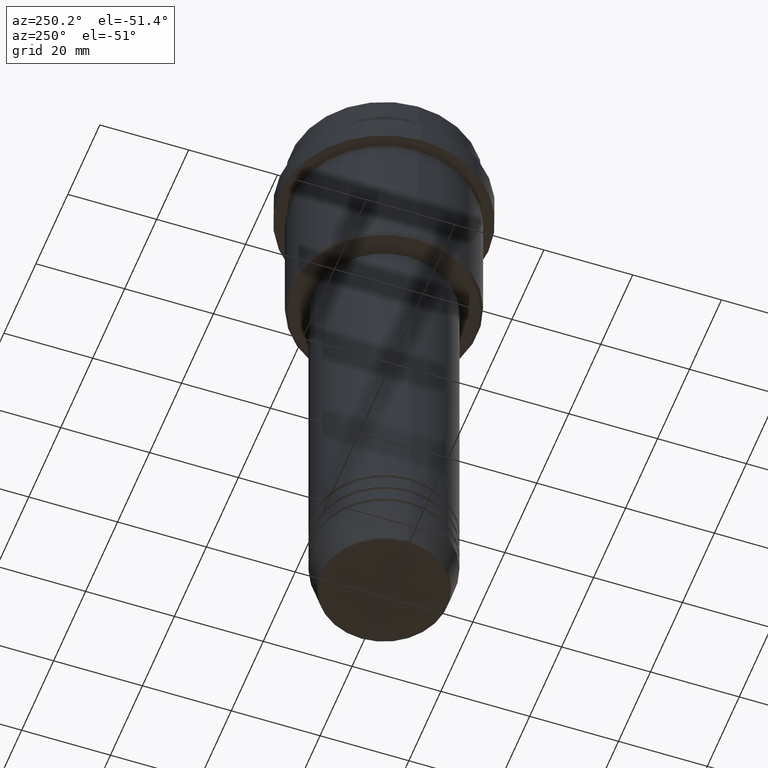
[diagram: clean part render]
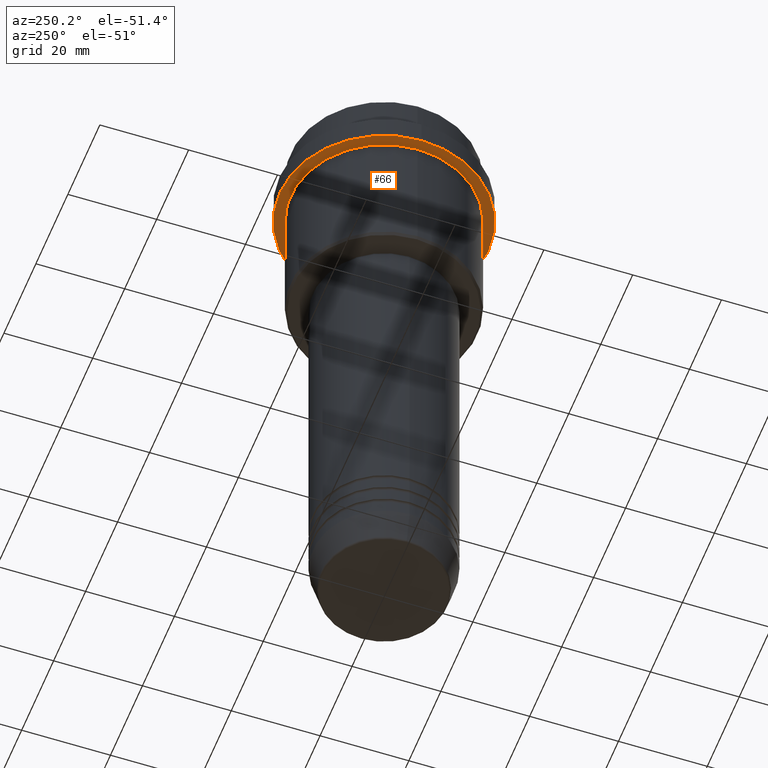
[diagram: same view with one face highlighted and labeled with its STEP entity id]
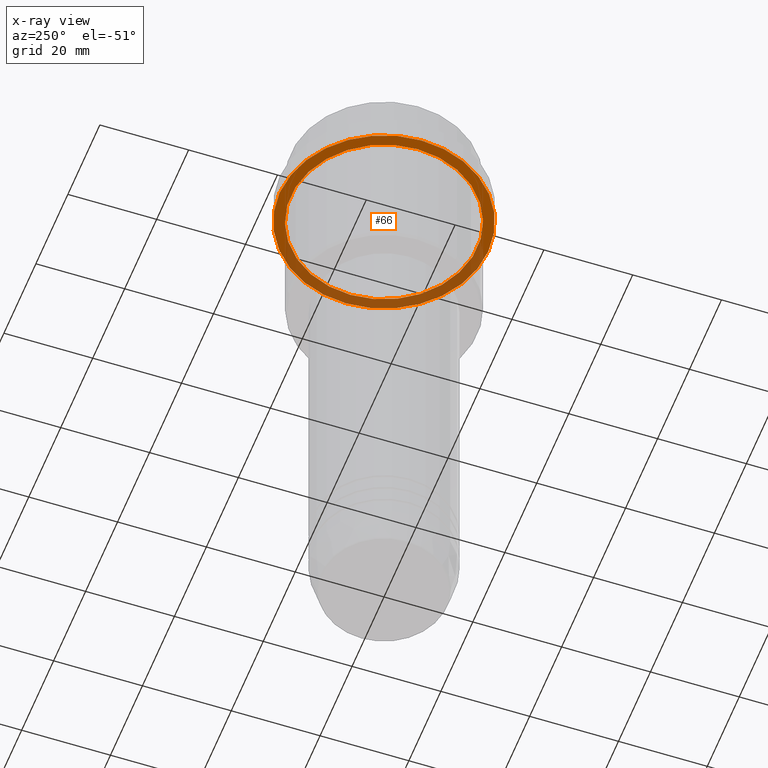
[diagram: x-ray of the same camera — body ghosted, the highlighted face saturated]
A machine part, auxiliary view. The second image highlights one B-rep face of the part: STEP entity #66.
The next image is the same camera in x-ray: the body ghosted, the highlighted face saturated — about 39% of this face is hidden behind the body in this view.
In plain terms, the highlighted planar face has unit normal (0, 0, -1).
Its self-contained STEP definition (entity closure, byte-faithful):
#66 = ADVANCED_FACE ( 'NONE', ( #729, #68 ), #764, .T. ) ;
#68 = FACE_OUTER_BOUND ( 'NONE', #1074, .T. ) ;
#111 = CARTESIAN_POINT ( 'NONE',  ( 20.99999999999999289, 2.571758278209440872E-15, -15.00000000000000178 ) ) ;
#175 = VERTEX_POINT ( 'NONE', #642 ) ;
#187 = CIRCLE ( 'NONE', #1002, 20.99999999999999289 ) ;
#199 = DIRECTION ( 'NONE',  ( 1.000000000000000000, 0.000000000000000000, 0.000000000000000000 ) ) ;
#231 = ORIENTED_EDGE ( 'NONE', *, *, #846, .T. ) ;
#384 = VERTEX_POINT ( 'NONE', #806 ) ;
#394 = DIRECTION ( 'NONE',  ( -0.000000000000000000, -0.000000000000000000, 1.000000000000000000 ) ) ;
#408 = DIRECTION ( 'NONE',  ( -0.000000000000000000, -0.000000000000000000, 1.000000000000000000 ) ) ;
#610 = AXIS2_PLACEMENT_3D ( 'NONE', #841, #1397, #199 ) ;
#633 = CIRCLE ( 'NONE', #1072, 20.99999999999999289 ) ;
#642 = CARTESIAN_POINT ( 'NONE',  ( -23.50000000000000711, 2.877919977996281109E-15, -15.00000000000000000 ) ) ;
#677 = EDGE_CURVE ( 'NONE', #384, #902, #187, .T. ) ;
#707 = VERTEX_POINT ( 'NONE', #831 ) ;
#718 = DIRECTION ( 'NONE',  ( -1.000000000000000000, 0.000000000000000000, 0.000000000000000000 ) ) ;
#720 = AXIS2_PLACEMENT_3D ( 'NONE', #1415, #1181, #1270 ) ;
#729 = FACE_BOUND ( 'NONE', #768, .T. ) ;
#754 = EDGE_CURVE ( 'NONE', #175, #707, #817, .T. ) ;
#758 = DIRECTION ( 'NONE',  ( -1.000000000000000000, 0.000000000000000000, 0.000000000000000000 ) ) ;
#764 = PLANE ( 'NONE',  #720 ) ;
#768 = EDGE_LOOP ( 'NONE', ( #1110, #231 ) ) ;
#770 = DIRECTION ( 'NONE',  ( -0.000000000000000000, -0.000000000000000000, 1.000000000000000000 ) ) ;
#806 = CARTESIAN_POINT ( 'NONE',  ( -20.99999999999999289, 0.000000000000000000, -15.00000000000000178 ) ) ;
#817 = CIRCLE ( 'NONE', #610, 23.50000000000000355 ) ;
#831 = CARTESIAN_POINT ( 'NONE',  ( 23.50000000000000355, 0.000000000000000000, -15.00000000000000000 ) ) ;
#841 = CARTESIAN_POINT ( 'NONE',  ( 0.000000000000000000, 0.000000000000000000, -15.00000000000000000 ) ) ;
#846 = EDGE_CURVE ( 'NONE', #902, #384, #633, .T. ) ;
#902 = VERTEX_POINT ( 'NONE', #111 ) ;
#1002 = AXIS2_PLACEMENT_3D ( 'NONE', #1055, #394, #718 ) ;
#1055 = CARTESIAN_POINT ( 'NONE',  ( 0.000000000000000000, 0.000000000000000000, -15.00000000000000178 ) ) ;
#1072 = AXIS2_PLACEMENT_3D ( 'NONE', #1387, #408, #758 ) ;
#1074 = EDGE_LOOP ( 'NONE', ( #1104, #1311 ) ) ;
#1104 = ORIENTED_EDGE ( 'NONE', *, *, #1216, .F. ) ;
#1110 = ORIENTED_EDGE ( 'NONE', *, *, #677, .T. ) ;
#1180 = CARTESIAN_POINT ( 'NONE',  ( 0.000000000000000000, 0.000000000000000000, -15.00000000000000000 ) ) ;
#1181 = DIRECTION ( 'NONE',  ( 0.000000000000000000, 0.000000000000000000, -1.000000000000000000 ) ) ;
#1216 = EDGE_CURVE ( 'NONE', #707, #175, #1308, .T. ) ;
#1266 = AXIS2_PLACEMENT_3D ( 'NONE', #1180, #770, #1373 ) ;
#1270 = DIRECTION ( 'NONE',  ( -1.000000000000000000, 0.000000000000000000, -0.000000000000000000 ) ) ;
#1308 = CIRCLE ( 'NONE', #1266, 23.50000000000000355 ) ;
#1311 = ORIENTED_EDGE ( 'NONE', *, *, #754, .F. ) ;
#1373 = DIRECTION ( 'NONE',  ( 1.000000000000000000, 0.000000000000000000, 0.000000000000000000 ) ) ;
#1387 = CARTESIAN_POINT ( 'NONE',  ( 0.000000000000000000, 0.000000000000000000, -15.00000000000000178 ) ) ;
#1397 = DIRECTION ( 'NONE',  ( -0.000000000000000000, -0.000000000000000000, 1.000000000000000000 ) ) ;
#1415 = CARTESIAN_POINT ( 'NONE',  ( 0.000000000000000000, 23.50000000000000355, -15.00000000000000178 ) ) ;